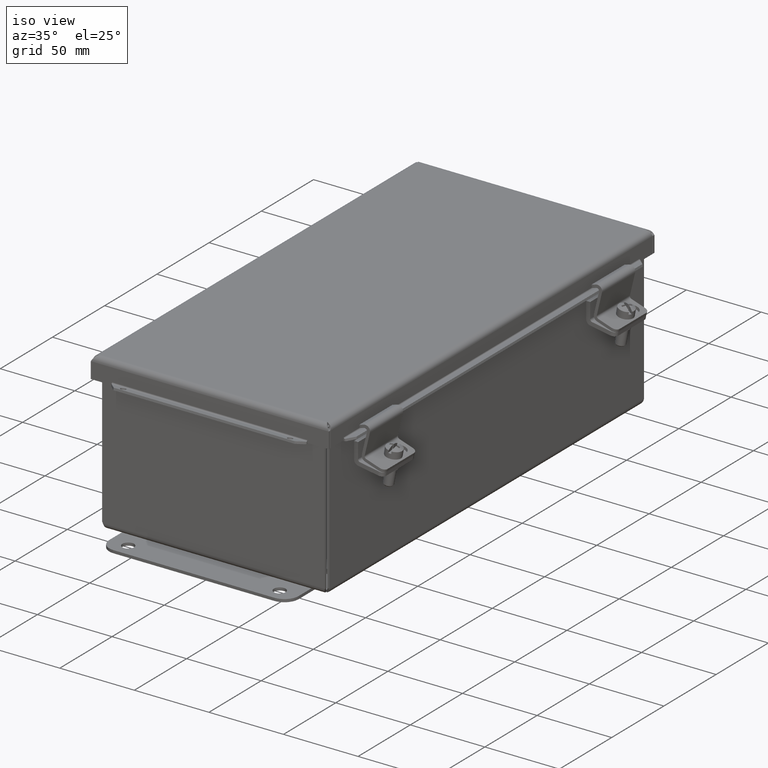
[diagram: clean part render]
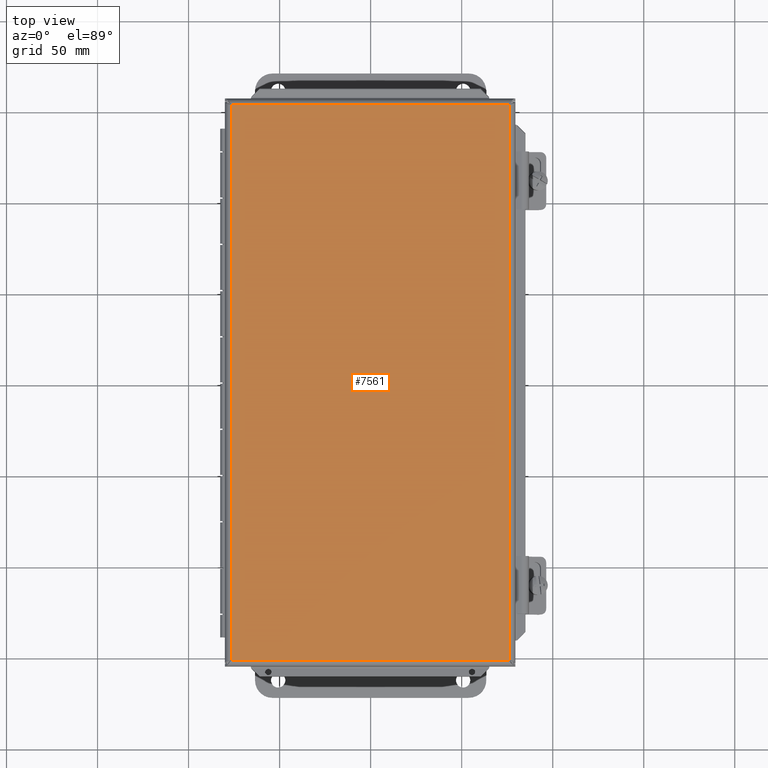
[diagram: tour spotlight — one face highlighted and labeled with its STEP entity id]
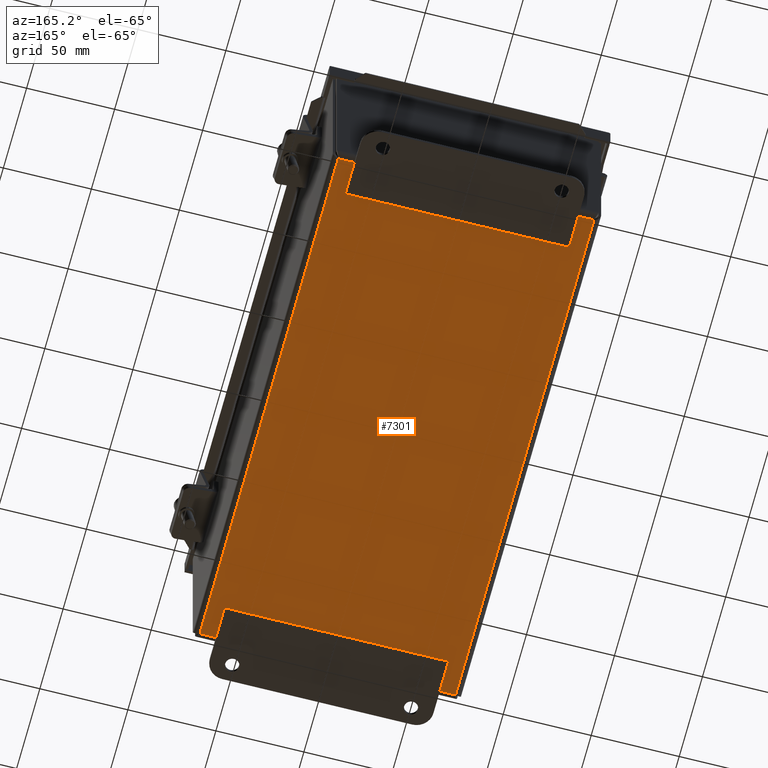
[diagram: tour spotlight — one face highlighted and labeled with its STEP entity id]
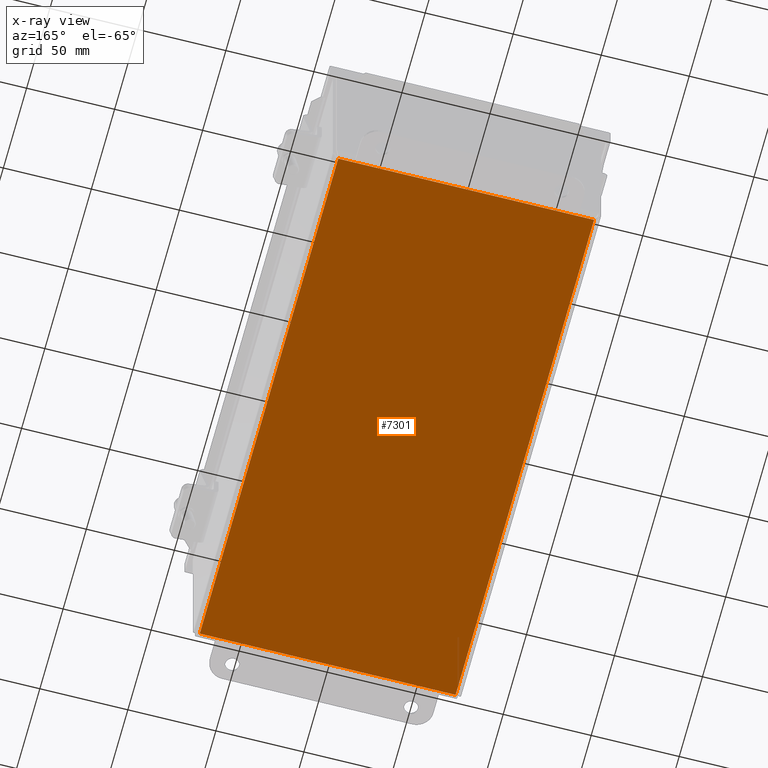
[diagram: x-ray of the same camera — body ghosted, this tour face saturated]
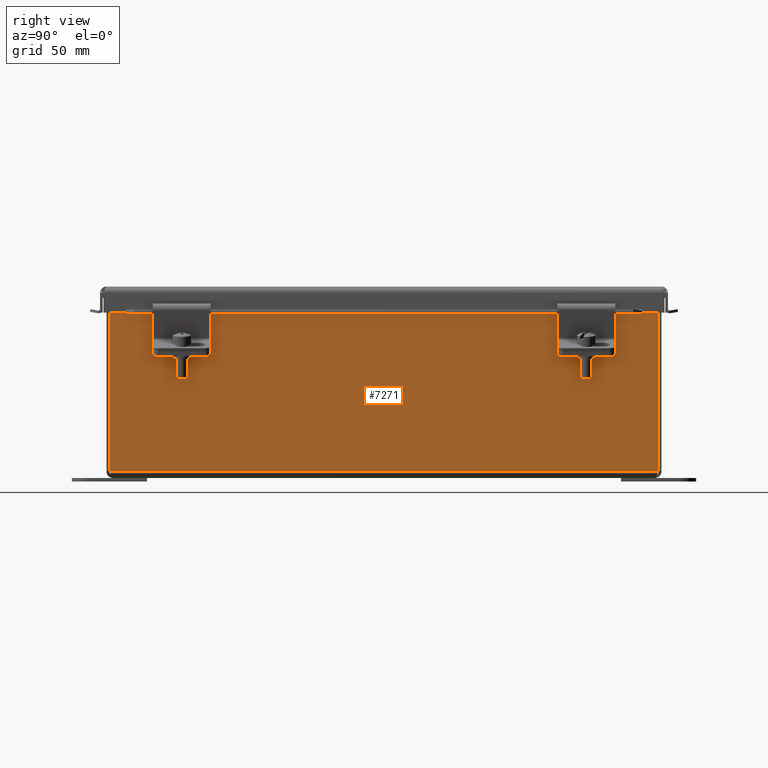
[diagram: tour spotlight — one face highlighted and labeled with its STEP entity id]
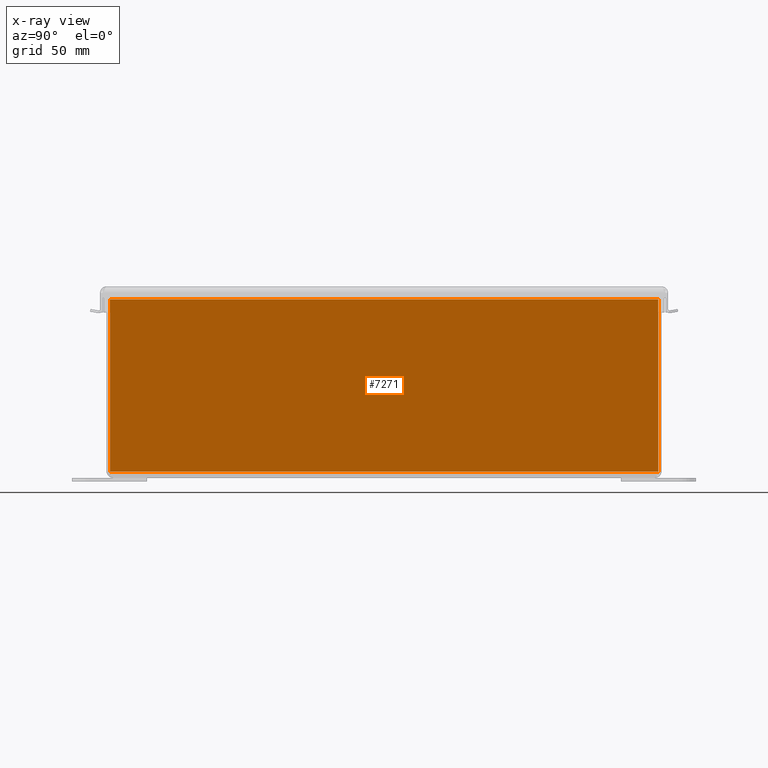
[diagram: x-ray of the same camera — body ghosted, this tour face saturated]
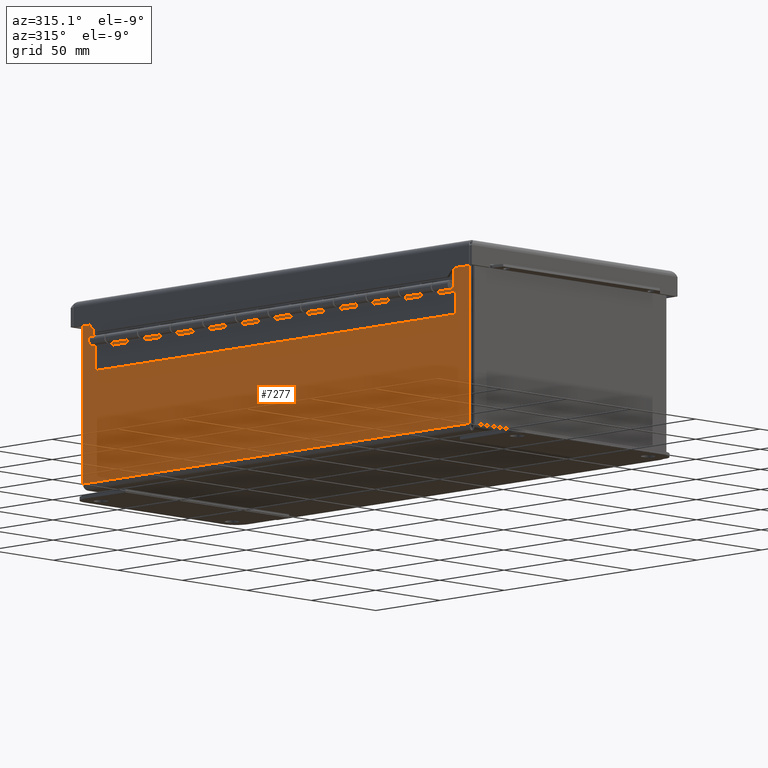
[diagram: tour spotlight — one face highlighted and labeled with its STEP entity id]
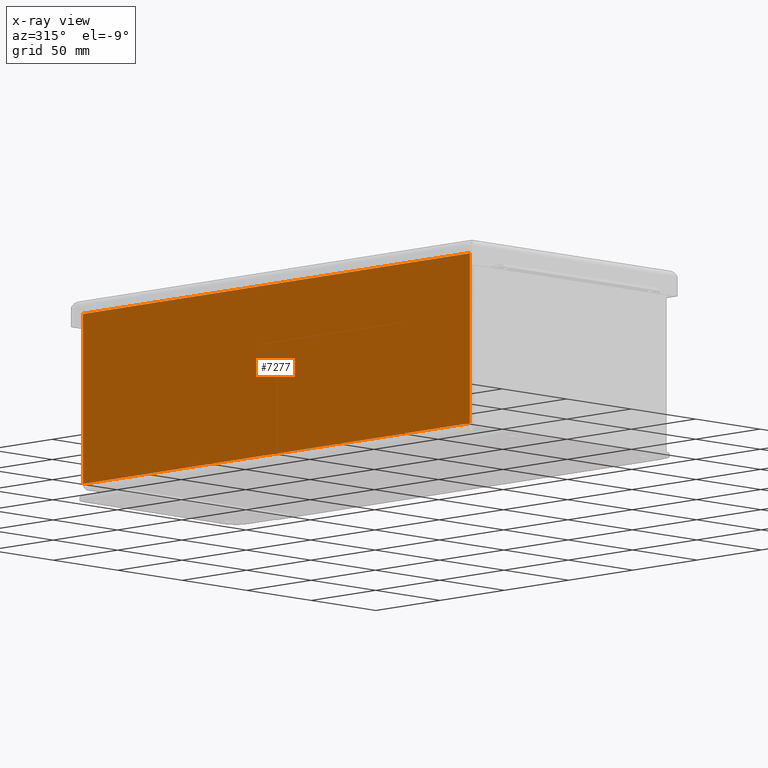
[diagram: x-ray of the same camera — body ghosted, this tour face saturated]
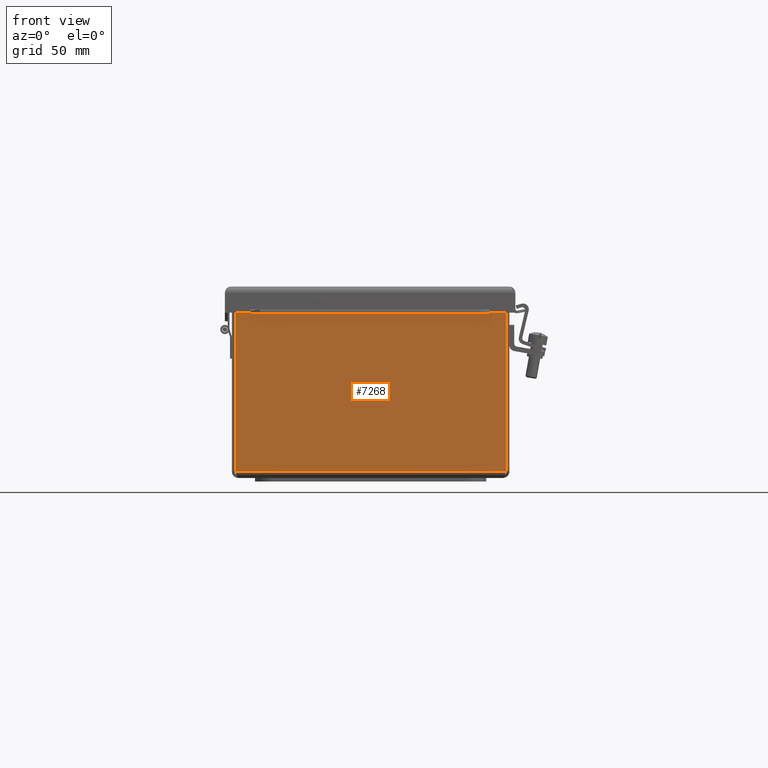
[diagram: tour spotlight — one face highlighted and labeled with its STEP entity id]
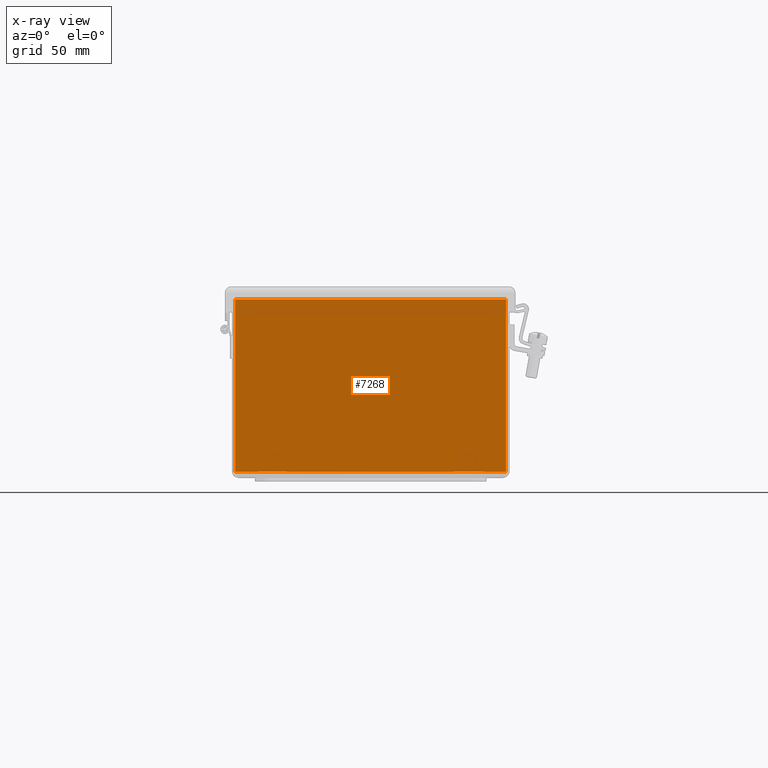
[diagram: x-ray of the same camera — body ghosted, this tour face saturated]
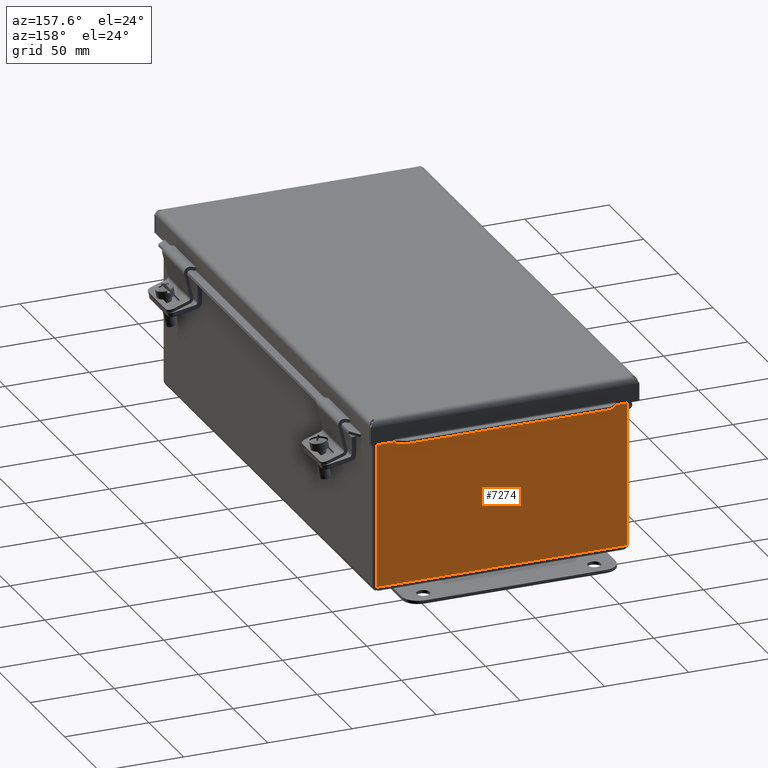
[diagram: tour spotlight — one face highlighted and labeled with its STEP entity id]
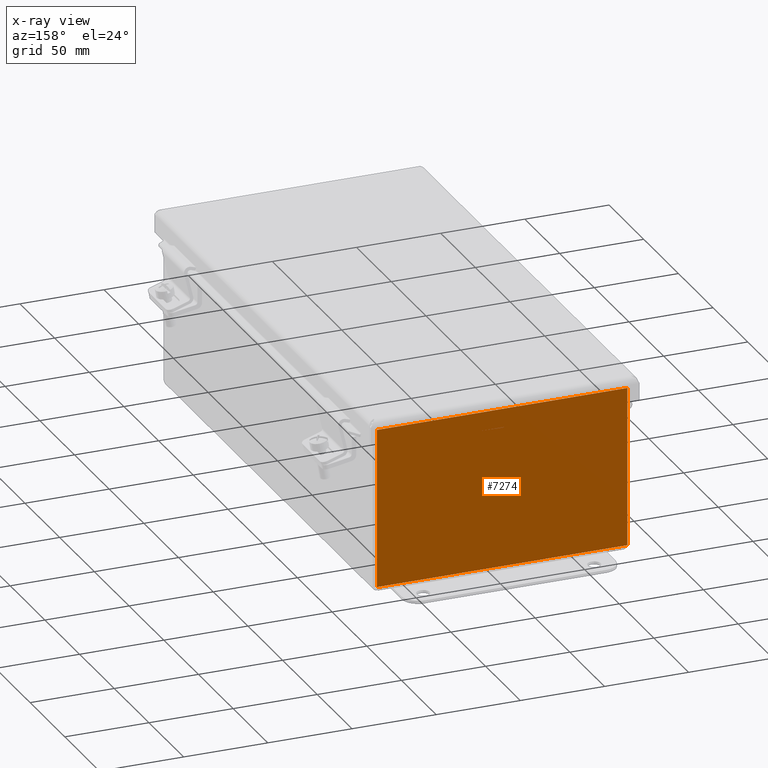
[diagram: x-ray of the same camera — body ghosted, this tour face saturated]
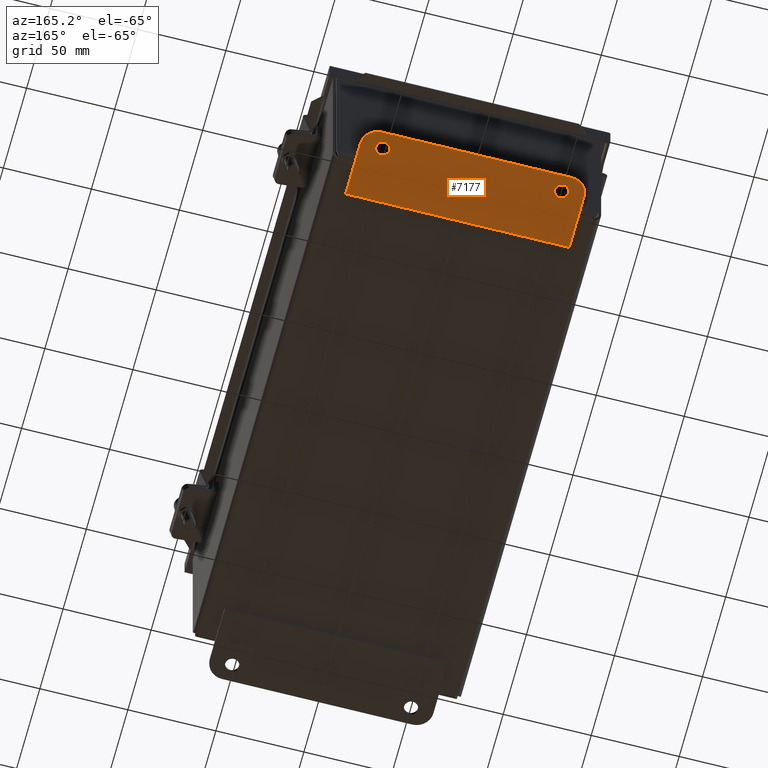
[diagram: tour spotlight — one face highlighted and labeled with its STEP entity id]
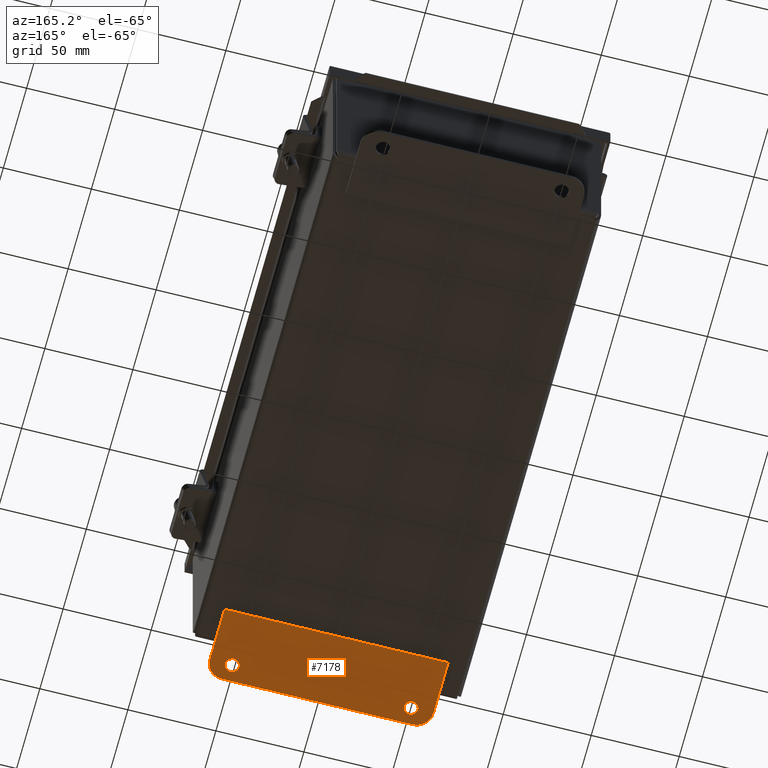
[diagram: tour spotlight — one face highlighted and labeled with its STEP entity id]
A machine part: a face-by-face anatomy tour. The part has 505 B-rep faces; the first image is the clean iso view, then the 8 largest visible faces are spotlighted one at a time (largest first), each with its STEP entity span.

Face 1 — top view, entity #7561. In plain terms, the highlighted planar face has unit normal (-0, 0, 1).
Definition (entity closure, byte-faithful):
#853=PLANE('',#8370);
#1448=LINE('',#12780,#2186);
#1488=LINE('',#13048,#2226);
#1591=LINE('',#13448,#2329);
#1592=LINE('',#13450,#2330);
#2186=VECTOR('',#9946,0.393700787401575);
#2226=VECTOR('',#10010,0.393700787401575);
#2329=VECTOR('',#10281,0.393700787401575);
#2330=VECTOR('',#10284,0.393700787401575);
#2834=FACE_OUTER_BOUND('',#3302,.T.);
#3302=EDGE_LOOP('',(#7149,#7150,#7151,#7152));
#3986=VERTEX_POINT('',#12501);
#4017=VERTEX_POINT('',#12649);
#4045=VERTEX_POINT('',#12779);
#4065=VERTEX_POINT('',#12961);
#4957=EDGE_CURVE('',#4045,#4017,#1448,.T.);
#5008=EDGE_CURVE('',#3986,#4065,#1488,.T.);
#5141=EDGE_CURVE('',#4017,#3986,#1591,.T.);
#5142=EDGE_CURVE('',#4065,#4045,#1592,.T.);
#7149=ORIENTED_EDGE('',*,*,#5141,.T.);
#7150=ORIENTED_EDGE('',*,*,#5008,.T.);
#7151=ORIENTED_EDGE('',*,*,#5142,.T.);
#7152=ORIENTED_EDGE('',*,*,#4957,.T.);
#7561=ADVANCED_FACE('',(#2834),#853,.T.);
#8370=AXIS2_PLACEMENT_3D('',#13451,#10285,#10286);
#9946=DIRECTION('',(-5.82454473538812E-17,-1.,-1.10523163603319E-33));
#10010=DIRECTION('',(0.,1.,-5.38196304227173E-45));
#10281=DIRECTION('',(1.,4.65692083487965E-16,0.));
#10284=DIRECTION('',(-1.,-2.32846041743982E-16,0.));
#10285=DIRECTION('center_axis',(0.,-5.38196304227173E-45,1.));
#10286=DIRECTION('ref_axis',(1.,0.,0.));
#12501=CARTESIAN_POINT('',(3.0035,-6.0035,0.0589999999999998));
#12649=CARTESIAN_POINT('',(-3.0035,-6.0035,0.0590000000000005));
#12779=CARTESIAN_POINT('',(-3.0035,6.0035,0.0590000000000005));
#12780=CARTESIAN_POINT('',(-3.0035,3.00175,0.0589999999999998));
#12961=CARTESIAN_POINT('',(3.0035,6.0035,0.0589999999999998));
#13048=CARTESIAN_POINT('',(3.0035,-3.00175,0.0589999999999998));
#13448=CARTESIAN_POINT('',(-1.50175,-6.0035,0.0589999999999998));
#13450=CARTESIAN_POINT('',(1.50175,6.0035,0.0589999999999998));
#13451=CARTESIAN_POINT('Origin',(-6.99353086378051E-16,-6.99353086378051E-16,
0.0589999999999998));

Face 2 — auxiliary view, entity #7301. An x-ray twin of the same camera follows (body ghosted, this face saturated) — the face is partly hidden behind the body. In plain terms, the highlighted planar face has unit normal (0, 0, 1).
Definition (entity closure, byte-faithful):
#677=PLANE('',#7997);
#1053=LINE('',#11270,#1791);
#1058=LINE('',#11349,#1796);
#1062=LINE('',#11426,#1800);
#1066=LINE('',#11502,#1804);
#1791=VECTOR('',#8975,0.393700787401575);
#1796=VECTOR('',#8986,0.393700787401575);
#1800=VECTOR('',#8996,0.393700787401575);
#1804=VECTOR('',#9006,0.393700787401575);
#2574=FACE_OUTER_BOUND('',#2993,.T.);
#2993=EDGE_LOOP('',(#5783,#5784,#5785,#5786));
#3691=VERTEX_POINT('',#11261);
#3692=VERTEX_POINT('',#11269);
#3695=VERTEX_POINT('',#11348);
#3697=VERTEX_POINT('',#11425);
#4427=EDGE_CURVE('',#3692,#3691,#1053,.T.);
#4436=EDGE_CURVE('',#3695,#3692,#1058,.T.);
#4444=EDGE_CURVE('',#3697,#3695,#1062,.T.);
#4452=EDGE_CURVE('',#3691,#3697,#1066,.T.);
#5783=ORIENTED_EDGE('',*,*,#4427,.T.);
#5784=ORIENTED_EDGE('',*,*,#4452,.T.);
#5785=ORIENTED_EDGE('',*,*,#4444,.T.);
#5786=ORIENTED_EDGE('',*,*,#4436,.T.);
#7301=ADVANCED_FACE('',(#2574),#677,.F.);
#7997=AXIS2_PLACEMENT_3D('',#11569,#9015,#9016);
#8975=DIRECTION('',(-1.,0.,0.));
#8986=DIRECTION('',(0.,-1.,0.));
#8996=DIRECTION('',(1.,2.44450256572648E-16,0.));
#9006=DIRECTION('',(1.19324758338986E-16,1.,0.));
#9015=DIRECTION('center_axis',(0.,0.,1.));
#9016=DIRECTION('ref_axis',(1.,0.,0.));
#11261=CARTESIAN_POINT('',(-2.860921875,-5.860921875,0.));
#11269=CARTESIAN_POINT('',(2.860921875,-5.860921875,0.));
#11270=CARTESIAN_POINT('',(1.4304609375,-5.860921875,0.));
#11348=CARTESIAN_POINT('',(2.860921875,5.860921875,-1.09273919746571E-17));
#11349=CARTESIAN_POINT('',(2.860921875,2.9304609375,0.));
#11425=CARTESIAN_POINT('',(-2.860921875,5.860921875,0.));
#11426=CARTESIAN_POINT('',(-1.4304609375,5.860921875,0.));
#11502=CARTESIAN_POINT('',(-2.860921875,-2.9304609375,0.));
#11569=CARTESIAN_POINT('Origin',(0.,-1.37751365498707E-16,0.));

Face 3 — right view, entity #7271. An x-ray twin of the same camera follows (body ghosted, this face saturated) — the face is partly hidden behind the body. In plain terms, the highlighted planar face has unit normal (-1, 0, 0).
Definition (entity closure, byte-faithful):
#663=PLANE('',#7975);
#978=LINE('',#10908,#1716);
#1032=LINE('',#11220,#1770);
#1033=LINE('',#11222,#1771);
#1034=LINE('',#11223,#1772);
#1716=VECTOR('',#8834,0.393700787401575);
#1770=VECTOR('',#8936,0.393700787401575);
#1771=VECTOR('',#8937,0.393700787401575);
#1772=VECTOR('',#8938,0.393700787401575);
#2544=FACE_OUTER_BOUND('',#2963,.T.);
#2963=EDGE_LOOP('',(#5663,#5664,#5665,#5666));
#3641=VERTEX_POINT('',#10899);
#3642=VERTEX_POINT('',#10907);
#3679=VERTEX_POINT('',#11219);
#3680=VERTEX_POINT('',#11221);
#4340=EDGE_CURVE('',#3642,#3641,#978,.T.);
#4405=EDGE_CURVE('',#3679,#3641,#1032,.T.);
#4406=EDGE_CURVE('',#3679,#3680,#1033,.T.);
#4407=EDGE_CURVE('',#3642,#3680,#1034,.T.);
#5663=ORIENTED_EDGE('',*,*,#4340,.T.);
#5664=ORIENTED_EDGE('',*,*,#4405,.F.);
#5665=ORIENTED_EDGE('',*,*,#4406,.T.);
#5666=ORIENTED_EDGE('',*,*,#4407,.F.);
#7271=ADVANCED_FACE('',(#2544),#663,.F.);
#7975=AXIS2_PLACEMENT_3D('',#11218,#8934,#8935);
#8834=DIRECTION('',(-1.07294778784951E-18,-1.,0.));
#8934=DIRECTION('center_axis',(-1.,1.07294778784951E-18,1.73748015669018E-15));
#8935=DIRECTION('ref_axis',(1.73748015669018E-15,0.,1.));
#8936=DIRECTION('',(1.83758917935762E-15,-1.81136295687944E-16,1.));
#8937=DIRECTION('',(1.07294778784951E-18,1.,-1.97163724496796E-33));
#8938=DIRECTION('',(-1.83758917935762E-15,-3.62272591375888E-16,-1.));
#10899=CARTESIAN_POINT('',(3.00000000000001,-5.92995145654396,3.860921875));
#10907=CARTESIAN_POINT('',(3.00000000000001,5.92995145654396,3.860921875));
#10908=CARTESIAN_POINT('',(3.00000000000001,2.96497572827198,3.860921875));
#11218=CARTESIAN_POINT('Origin',(3.,1.74838271594513E-16,1.99992272201927));
#11219=CARTESIAN_POINT('',(3.,-5.92995145654397,0.139078124999999));
#11220=CARTESIAN_POINT('',(3.,-5.92995145654396,0.139078124999999));
#11221=CARTESIAN_POINT('',(3.,5.92995145654397,0.139078125));
#11222=CARTESIAN_POINT('',(3.,7.8674990754369E-16,0.139078125));
#11223=CARTESIAN_POINT('',(3.,5.92995145654396,0.139078125));

Face 4 — auxiliary view, entity #7277. An x-ray twin of the same camera follows (body ghosted, this face saturated) — the face is partly hidden behind the body. In plain terms, the highlighted planar face has unit normal (1, -0, 0).
Definition (entity closure, byte-faithful):
#669=PLANE('',#7981);
#1010=LINE('',#11114,#1748);
#1046=LINE('',#11248,#1784);
#1047=LINE('',#11250,#1785);
#1048=LINE('',#11251,#1786);
#1748=VECTOR('',#8894,0.393700787401575);
#1784=VECTOR('',#8962,0.393700787401575);
#1785=VECTOR('',#8963,0.393700787401575);
#1786=VECTOR('',#8964,0.393700787401575);
#2550=FACE_OUTER_BOUND('',#2969,.T.);
#2969=EDGE_LOOP('',(#5687,#5688,#5689,#5690));
#3665=VERTEX_POINT('',#11105);
#3666=VERTEX_POINT('',#11113);
#3687=VERTEX_POINT('',#11247);
#3688=VERTEX_POINT('',#11249);
#4380=EDGE_CURVE('',#3666,#3665,#1010,.T.);
#4419=EDGE_CURVE('',#3687,#3665,#1046,.T.);
#4420=EDGE_CURVE('',#3687,#3688,#1047,.T.);
#4421=EDGE_CURVE('',#3666,#3688,#1048,.T.);
#5687=ORIENTED_EDGE('',*,*,#4380,.T.);
#5688=ORIENTED_EDGE('',*,*,#4419,.F.);
#5689=ORIENTED_EDGE('',*,*,#4420,.T.);
#5690=ORIENTED_EDGE('',*,*,#4421,.F.);
#7277=ADVANCED_FACE('',(#2550),#669,.F.);
#7981=AXIS2_PLACEMENT_3D('',#11246,#8960,#8961);
#8894=DIRECTION('',(9.68890327802995E-17,1.,-1.17935718614743E-16));
#8960=DIRECTION('center_axis',(1.,-9.68890327802992E-17,1.70679246906108E-15));
#8961=DIRECTION('ref_axis',(1.70679246906108E-15,1.16558847729675E-16,-1.));
#8962=DIRECTION('',(-1.83758917935762E-15,2.2186712959341E-31,1.));
#8963=DIRECTION('',(-9.68890327802992E-17,-1.,3.614503911094E-32));
#8964=DIRECTION('',(1.83758917935762E-15,-2.2186712959341E-31,-1.));
#11105=CARTESIAN_POINT('',(-3.,5.92995145654396,3.860921875));
#11113=CARTESIAN_POINT('',(-3.00000000000001,-5.92995145654396,3.860921875));
#11114=CARTESIAN_POINT('',(-3.00000000000001,-2.96497572827198,3.860921875));
#11246=CARTESIAN_POINT('Origin',(-3.,-4.8079272924488E-16,1.99992272201927));
#11247=CARTESIAN_POINT('',(-3.,5.92995145654397,0.139078124999999));
#11248=CARTESIAN_POINT('',(-3.,5.92995145654396,0.139078124999999));
#11249=CARTESIAN_POINT('',(-3.,-5.92995145654397,0.139078125000001));
#11250=CARTESIAN_POINT('',(-3.,-5.82376597790674E-16,0.139078125));
#11251=CARTESIAN_POINT('',(-3.,-5.92995145654396,0.139078125000001));

Face 5 — front view, entity #7268. An x-ray twin of the same camera follows (body ghosted, this face saturated) — the face is partly hidden behind the body. In plain terms, the highlighted planar face has unit normal (-0, 1, 0).
Definition (entity closure, byte-faithful):
#660=PLANE('',#7972);
#962=LINE('',#10805,#1700);
#1025=LINE('',#11206,#1763);
#1026=LINE('',#11208,#1764);
#1027=LINE('',#11209,#1765);
#1700=VECTOR('',#8804,0.393700787401575);
#1763=VECTOR('',#8923,0.393700787401575);
#1764=VECTOR('',#8924,0.393700787401575);
#1765=VECTOR('',#8925,0.393700787401575);
#2541=FACE_OUTER_BOUND('',#2960,.T.);
#2960=EDGE_LOOP('',(#5651,#5652,#5653,#5654));
#3629=VERTEX_POINT('',#10796);
#3630=VERTEX_POINT('',#10804);
#3675=VERTEX_POINT('',#11205);
#3676=VERTEX_POINT('',#11207);
#4320=EDGE_CURVE('',#3630,#3629,#962,.T.);
#4398=EDGE_CURVE('',#3675,#3629,#1025,.T.);
#4399=EDGE_CURVE('',#3675,#3676,#1026,.T.);
#4400=EDGE_CURVE('',#3630,#3676,#1027,.T.);
#5651=ORIENTED_EDGE('',*,*,#4320,.T.);
#5652=ORIENTED_EDGE('',*,*,#4398,.F.);
#5653=ORIENTED_EDGE('',*,*,#4399,.T.);
#5654=ORIENTED_EDGE('',*,*,#4400,.F.);
#7268=ADVANCED_FACE('',(#2541),#660,.F.);
#7972=AXIS2_PLACEMENT_3D('',#11204,#8921,#8922);
#8804=DIRECTION('',(-1.,-4.51910686797291E-16,0.));
#8921=DIRECTION('center_axis',(-4.51910686797291E-16,1.,5.20151996776631E-15));
#8922=DIRECTION('ref_axis',(1.,4.51910686797291E-16,1.16558847729677E-16));
#8923=DIRECTION('',(-1.81136295687943E-16,-5.39030285815812E-15,1.));
#8924=DIRECTION('',(1.,4.51910686797291E-16,1.80764797661475E-30));
#8925=DIRECTION('',(-9.05681478439726E-17,5.39030285815812E-15,-1.));
#10796=CARTESIAN_POINT('',(-2.92995145654396,-6.00000000000002,3.860921875));
#10804=CARTESIAN_POINT('',(2.92995145654396,-6.00000000000002,3.860921875));
#10805=CARTESIAN_POINT('',(1.46497572827198,-6.00000000000002,3.860921875));
#11204=CARTESIAN_POINT('Origin',(-6.56125739417017E-16,-6.00000000000001,
2.00416726104193));
#11205=CARTESIAN_POINT('',(-2.92995145654396,-6.,0.139078125));
#11206=CARTESIAN_POINT('',(-2.92995145654396,-6.,0.139078125));
#11207=CARTESIAN_POINT('',(2.92995145654396,-6.,0.139078125));
#11208=CARTESIAN_POINT('',(-6.62659540027324E-16,-6.,0.139078124999999));
#11209=CARTESIAN_POINT('',(2.92995145654396,-6.,0.139078125));

Face 6 — auxiliary view, entity #7274. An x-ray twin of the same camera follows (body ghosted, this face saturated) — the face is partly hidden behind the body. In plain terms, the highlighted planar face has unit normal (0, -1, 0).
Definition (entity closure, byte-faithful):
#666=PLANE('',#7978);
#994=LINE('',#11011,#1732);
#1039=LINE('',#11234,#1777);
#1040=LINE('',#11236,#1778);
#1041=LINE('',#11237,#1779);
#1732=VECTOR('',#8864,0.393700787401575);
#1777=VECTOR('',#8949,0.393700787401575);
#1778=VECTOR('',#8950,0.393700787401575);
#1779=VECTOR('',#8951,0.393700787401575);
#2547=FACE_OUTER_BOUND('',#2966,.T.);
#2966=EDGE_LOOP('',(#5675,#5676,#5677,#5678));
#3653=VERTEX_POINT('',#11002);
#3654=VERTEX_POINT('',#11010);
#3683=VERTEX_POINT('',#11233);
#3684=VERTEX_POINT('',#11235);
#4360=EDGE_CURVE('',#3654,#3653,#994,.T.);
#4412=EDGE_CURVE('',#3683,#3653,#1039,.T.);
#4413=EDGE_CURVE('',#3683,#3684,#1040,.T.);
#4414=EDGE_CURVE('',#3654,#3684,#1041,.T.);
#5675=ORIENTED_EDGE('',*,*,#4360,.T.);
#5676=ORIENTED_EDGE('',*,*,#4412,.F.);
#5677=ORIENTED_EDGE('',*,*,#4413,.T.);
#5678=ORIENTED_EDGE('',*,*,#4414,.F.);
#7274=ADVANCED_FACE('',(#2547),#666,.F.);
#7978=AXIS2_PLACEMENT_3D('',#11232,#8947,#8948);
#8864=DIRECTION('',(1.,2.3018331040014E-16,-2.38691014766155E-16));
#8947=DIRECTION('center_axis',(2.30183310400141E-16,-1.,5.35180842590748E-15));
#8948=DIRECTION('ref_axis',(1.,2.3018331040014E-16,-2.33117695459351E-16));
#8949=DIRECTION('',(9.05681478439708E-17,5.39030285815812E-15,1.));
#8950=DIRECTION('',(-1.,-2.30183310400141E-16,-1.58172241715941E-32));
#8951=DIRECTION('',(9.05681478439732E-17,-5.39030285815812E-15,-1.));
#11002=CARTESIAN_POINT('',(2.92995145654396,6.00000000000002,3.860921875));
#11010=CARTESIAN_POINT('',(-2.92995145654396,6.00000000000002,3.860921875));
#11011=CARTESIAN_POINT('',(-1.46497572827198,6.00000000000002,3.860921875));
#11232=CARTESIAN_POINT('Origin',(8.83835776724447E-17,6.00000000000001,
2.00416726104193));
#11233=CARTESIAN_POINT('',(2.92995145654396,6.,0.139078124999999));
#11234=CARTESIAN_POINT('',(2.92995145654396,6.,0.139078124999999));
#11235=CARTESIAN_POINT('',(-2.92995145654396,6.,0.139078124999999));
#11236=CARTESIAN_POINT('',(-1.46796240879424E-16,6.,0.139078125));
#11237=CARTESIAN_POINT('',(-2.92995145654396,6.,0.139078124999999));

Face 7 — auxiliary view, entity #7177. In plain terms, the highlighted planar face has unit normal (-0, 0, 1).
Definition (entity closure, byte-faithful):
#538=FACE_BOUND('',#2860,.T.);
#539=FACE_BOUND('',#2861,.T.);
#604=PLANE('',#7833);
#862=LINE('',#10471,#1600);
#867=LINE('',#10484,#1605);
#871=LINE('',#10496,#1609);
#873=LINE('',#10499,#1611);
#1600=VECTOR('',#8462,0.393700787401575);
#1605=VECTOR('',#8475,0.393700787401575);
#1609=VECTOR('',#8487,0.393700787401575);
#1611=VECTOR('',#8491,0.393700787401575);
#2450=FACE_OUTER_BOUND('',#2859,.T.);
#2859=EDGE_LOOP('',(#5213,#5214,#5215,#5216,#5217,#5218));
#2860=EDGE_LOOP('',(#5219));
#2861=EDGE_LOOP('',(#5220));
#3320=CIRCLE('',#7818,0.155);
#3322=CIRCLE('',#7821,0.155);
#3325=CIRCLE('',#7826,0.375);
#3327=CIRCLE('',#7830,0.375);
#3517=VERTEX_POINT('',#10453);
#3519=VERTEX_POINT('',#10459);
#3523=VERTEX_POINT('',#10468);
#3524=VERTEX_POINT('',#10470);
#3526=VERTEX_POINT('',#10476);
#3528=VERTEX_POINT('',#10482);
#3530=VERTEX_POINT('',#10488);
#3532=VERTEX_POINT('',#10494);
#4155=EDGE_CURVE('',#3517,#3517,#3320,.T.);
#4158=EDGE_CURVE('',#3519,#3519,#3322,.T.);
#4163=EDGE_CURVE('',#3523,#3524,#862,.T.);
#4167=EDGE_CURVE('',#3526,#3523,#3325,.T.);
#4170=EDGE_CURVE('',#3528,#3526,#867,.T.);
#4173=EDGE_CURVE('',#3530,#3528,#3327,.T.);
#4176=EDGE_CURVE('',#3532,#3530,#871,.T.);
#4178=EDGE_CURVE('',#3524,#3532,#873,.T.);
#5213=ORIENTED_EDGE('',*,*,#4178,.F.);
#5214=ORIENTED_EDGE('',*,*,#4163,.F.);
#5215=ORIENTED_EDGE('',*,*,#4167,.F.);
#5216=ORIENTED_EDGE('',*,*,#4170,.F.);
#5217=ORIENTED_EDGE('',*,*,#4173,.F.);
#5218=ORIENTED_EDGE('',*,*,#4176,.F.);
#5219=ORIENTED_EDGE('',*,*,#4155,.T.);
#5220=ORIENTED_EDGE('',*,*,#4158,.T.);
#7177=ADVANCED_FACE('',(#2450,#538,#539),#604,.F.);
#7818=AXIS2_PLACEMENT_3D('',#10454,#8446,#8447);
#7821=AXIS2_PLACEMENT_3D('',#10460,#8453,#8454);
#7826=AXIS2_PLACEMENT_3D('',#10478,#8469,#8470);
#7830=AXIS2_PLACEMENT_3D('',#10490,#8481,#8482);
#7833=AXIS2_PLACEMENT_3D('',#10500,#8492,#8493);
#8446=DIRECTION('center_axis',(0.,0.,1.));
#8447=DIRECTION('ref_axis',(-1.,0.,0.));
#8453=DIRECTION('center_axis',(0.,0.,1.));
#8454=DIRECTION('ref_axis',(-1.,0.,0.));
#8462=DIRECTION('',(3.14708888870123E-16,-1.,0.));
#8469=DIRECTION('center_axis',(0.,0.,1.));
#8470=DIRECTION('ref_axis',(-1.16558847729675E-16,1.,0.));
#8475=DIRECTION('',(-1.,0.,0.));
#8481=DIRECTION('center_axis',(0.,0.,1.));
#8482=DIRECTION('ref_axis',(1.,0.,0.));
#8487=DIRECTION('',(0.,1.,0.));
#8491=DIRECTION('',(1.,0.,0.));
#8492=DIRECTION('center_axis',(0.,0.,1.));
#8493=DIRECTION('ref_axis',(1.,0.,0.));
#10453=CARTESIAN_POINT('',(4.655,1.25,0.));
#10454=CARTESIAN_POINT('Origin',(4.5,1.25,0.));
#10459=CARTESIAN_POINT('',(0.655,1.25,0.));
#10460=CARTESIAN_POINT('Origin',(0.5,1.25,0.));
#10468=CARTESIAN_POINT('',(-3.93386111087654E-16,1.25,0.));
#10470=CARTESIAN_POINT('',(0.,0.,0.));
#10471=CARTESIAN_POINT('',(-3.93386111087654E-16,1.25,0.));
#10476=CARTESIAN_POINT('',(0.375,1.625,0.));
#10478=CARTESIAN_POINT('Origin',(0.375,1.25,0.));
#10482=CARTESIAN_POINT('',(4.625,1.625,0.));
#10484=CARTESIAN_POINT('',(4.625,1.625,0.));
#10488=CARTESIAN_POINT('',(5.,1.25,0.));
#10490=CARTESIAN_POINT('Origin',(4.625,1.25,0.));
#10494=CARTESIAN_POINT('',(5.,0.,0.));
#10496=CARTESIAN_POINT('',(5.,0.,0.));
#10499=CARTESIAN_POINT('',(0.,0.,0.));
#10500=CARTESIAN_POINT('Origin',(2.5,0.790263906815817,0.));

Face 8 — auxiliary view, entity #7178. In plain terms, the highlighted planar face has unit normal (-0, 0, -1).
Definition (entity closure, byte-faithful):
#540=FACE_BOUND('',#2863,.T.);
#541=FACE_BOUND('',#2864,.T.);
#605=PLANE('',#7834);
#860=LINE('',#10467,#1598);
#865=LINE('',#10481,#1603);
#869=LINE('',#10493,#1607);
#872=LINE('',#10498,#1610);
#1598=VECTOR('',#8460,0.393700787401575);
#1603=VECTOR('',#8473,0.393700787401575);
#1607=VECTOR('',#8485,0.393700787401575);
#1610=VECTOR('',#8490,0.393700787401575);
#2451=FACE_OUTER_BOUND('',#2862,.T.);
#2862=EDGE_LOOP('',(#5221,#5222,#5223,#5224,#5225,#5226));
#2863=EDGE_LOOP('',(#5227));
#2864=EDGE_LOOP('',(#5228));
#3321=CIRCLE('',#7819,0.155);
#3323=CIRCLE('',#7822,0.155);
#3324=CIRCLE('',#7825,0.375);
#3326=CIRCLE('',#7829,0.375);
#3518=VERTEX_POINT('',#10455);
#3520=VERTEX_POINT('',#10461);
#3521=VERTEX_POINT('',#10465);
#3522=VERTEX_POINT('',#10466);
#3525=VERTEX_POINT('',#10474);
#3527=VERTEX_POINT('',#10480);
#3529=VERTEX_POINT('',#10486);
#3531=VERTEX_POINT('',#10492);
#4157=EDGE_CURVE('',#3518,#3518,#3321,.T.);
#4160=EDGE_CURVE('',#3520,#3520,#3323,.T.);
#4161=EDGE_CURVE('',#3521,#3522,#860,.T.);
#4165=EDGE_CURVE('',#3522,#3525,#3324,.T.);
#4168=EDGE_CURVE('',#3525,#3527,#865,.T.);
#4171=EDGE_CURVE('',#3527,#3529,#3326,.T.);
#4174=EDGE_CURVE('',#3529,#3531,#869,.T.);
#4177=EDGE_CURVE('',#3531,#3521,#872,.T.);
#5221=ORIENTED_EDGE('',*,*,#4161,.F.);
#5222=ORIENTED_EDGE('',*,*,#4177,.F.);
#5223=ORIENTED_EDGE('',*,*,#4174,.F.);
#5224=ORIENTED_EDGE('',*,*,#4171,.F.);
#5225=ORIENTED_EDGE('',*,*,#4168,.F.);
#5226=ORIENTED_EDGE('',*,*,#4165,.F.);
#5227=ORIENTED_EDGE('',*,*,#4157,.T.);
#5228=ORIENTED_EDGE('',*,*,#4160,.T.);
#7178=ADVANCED_FACE('',(#2451,#540,#541),#605,.T.);
#7819=AXIS2_PLACEMENT_3D('',#10457,#8449,#8450);
#7822=AXIS2_PLACEMENT_3D('',#10463,#8456,#8457);
#7825=AXIS2_PLACEMENT_3D('',#10475,#8466,#8467);
#7829=AXIS2_PLACEMENT_3D('',#10487,#8478,#8479);
#7834=AXIS2_PLACEMENT_3D('',#10501,#8494,#8495);
#8449=DIRECTION('center_axis',(0.,0.,-1.));
#8450=DIRECTION('ref_axis',(-1.,0.,0.));
#8456=DIRECTION('center_axis',(0.,0.,-1.));
#8457=DIRECTION('ref_axis',(-1.,0.,0.));
#8460=DIRECTION('',(-3.14708888870123E-16,1.,0.));
#8466=DIRECTION('center_axis',(0.,0.,-1.));
#8467=DIRECTION('ref_axis',(-1.16558847729675E-16,1.,0.));
#8473=DIRECTION('',(1.,0.,0.));
#8478=DIRECTION('center_axis',(0.,0.,-1.));
#8479=DIRECTION('ref_axis',(1.,0.,0.));
#8485=DIRECTION('',(0.,-1.,0.));
#8490=DIRECTION('',(-1.,0.,0.));
#8494=DIRECTION('center_axis',(0.,0.,1.));
#8495=DIRECTION('ref_axis',(1.,0.,0.));
#10455=CARTESIAN_POINT('',(4.655,1.25,0.075));
#10457=CARTESIAN_POINT('Origin',(4.5,1.25,0.075));
#10461=CARTESIAN_POINT('',(0.655,1.25,0.075));
#10463=CARTESIAN_POINT('Origin',(0.5,1.25,0.075));
#10465=CARTESIAN_POINT('',(0.,0.,0.075));
#10466=CARTESIAN_POINT('',(-3.93386111087654E-16,1.25,0.075));
#10467=CARTESIAN_POINT('',(-3.93386111087654E-16,1.25,0.075));
#10474=CARTESIAN_POINT('',(0.375,1.625,0.075));
#10475=CARTESIAN_POINT('Origin',(0.375,1.25,0.075));
#10480=CARTESIAN_POINT('',(4.625,1.625,0.075));
#10481=CARTESIAN_POINT('',(4.625,1.625,0.075));
#10486=CARTESIAN_POINT('',(5.,1.25,0.075));
#10487=CARTESIAN_POINT('Origin',(4.625,1.25,0.075));
#10492=CARTESIAN_POINT('',(5.,0.,0.075));
#10493=CARTESIAN_POINT('',(5.,0.,0.075));
#10498=CARTESIAN_POINT('',(0.,0.,0.075));
#10501=CARTESIAN_POINT('Origin',(2.5,0.790263906815817,0.075));